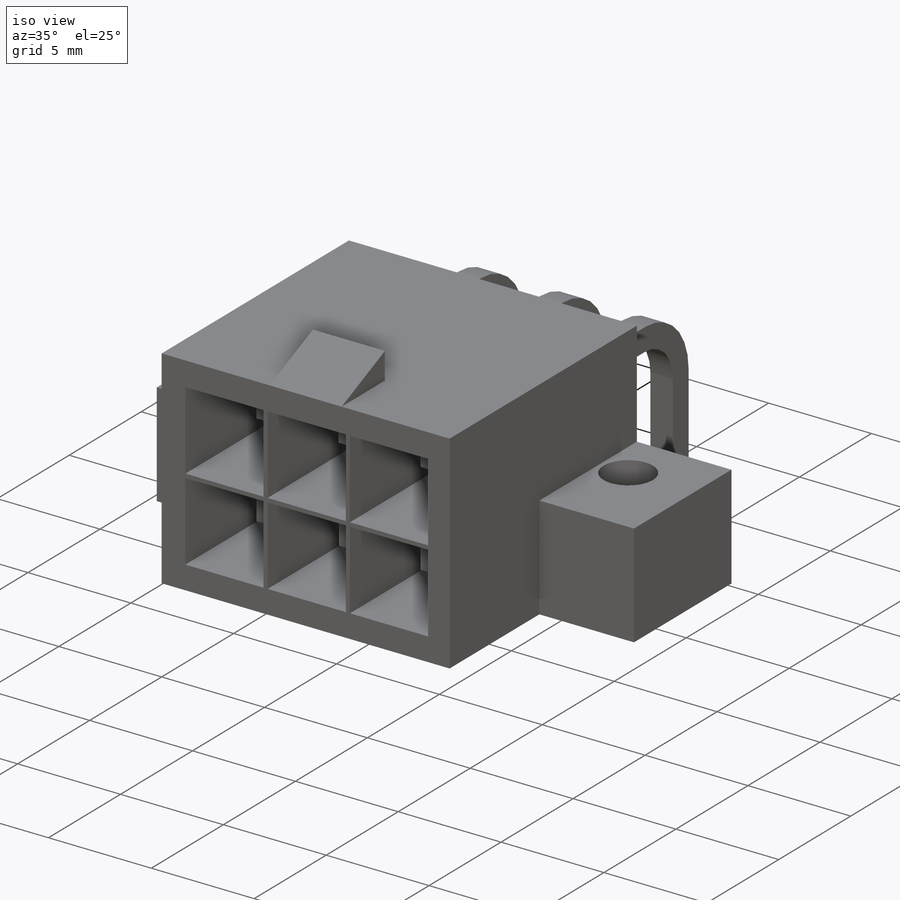
[diagram: iso view]
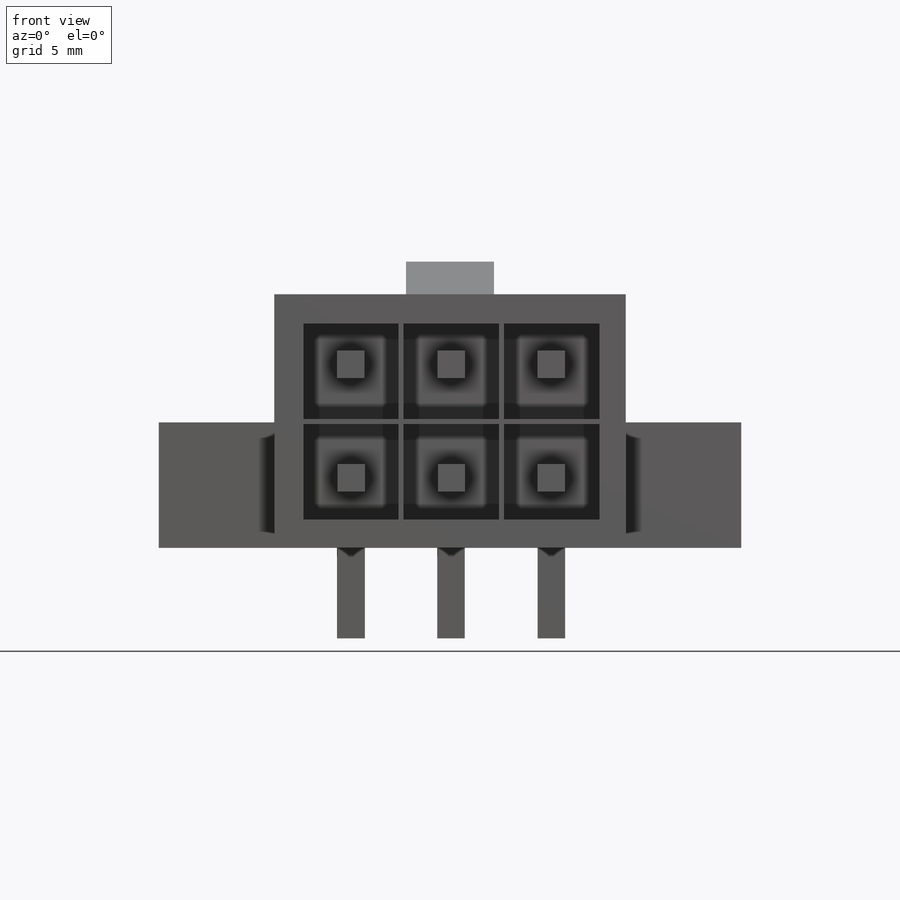
[diagram: front view]
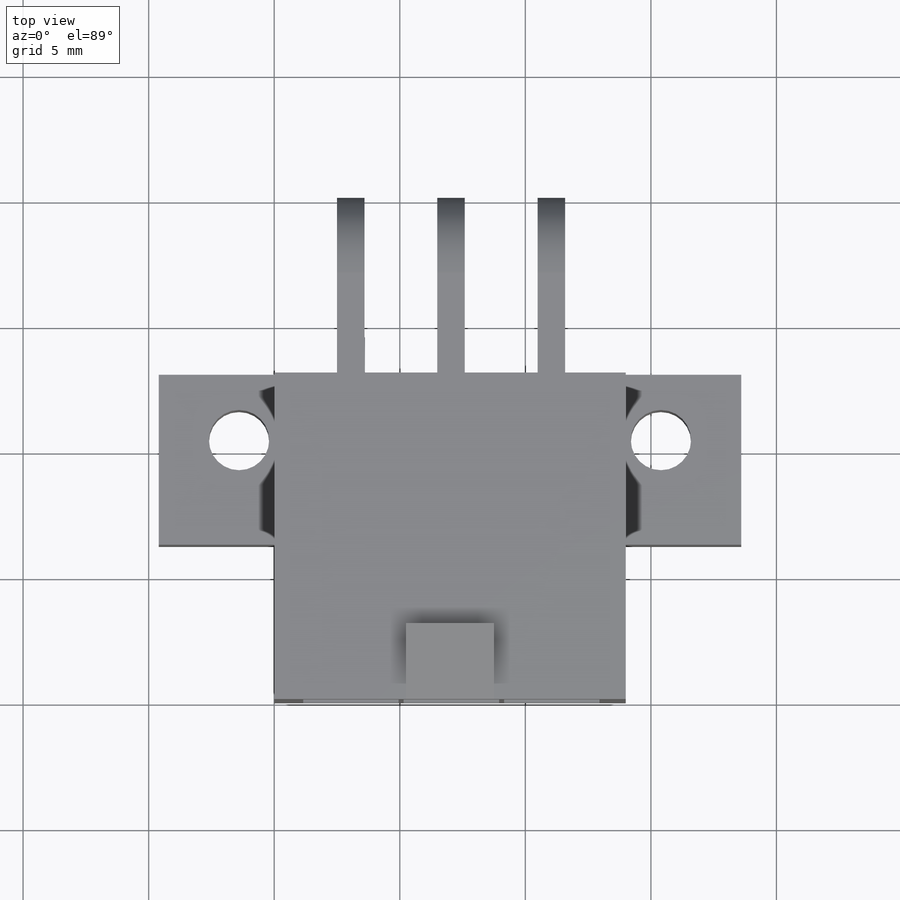
[diagram: top view]
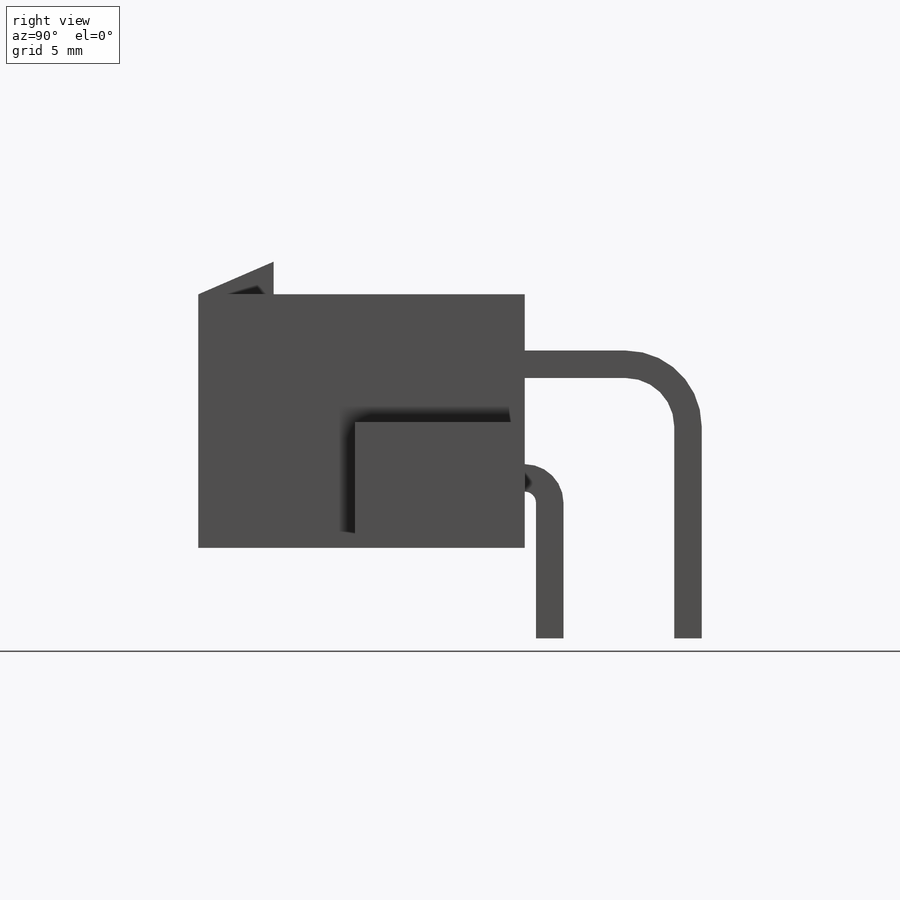
[diagram: right view]
SOLIDWORKS PART (.sldprt)
format: sldprt  version: not decoded by parser v0  size: 414,208 bytes
history: native  units: mm
features: sketch x14, plane x7, extrude x6, cut_extrude x3, sweep x2, material x1 (+12 scaffold rows collapsed)
feature tree (45):
  scaffold x12  (default folders/planes/origin — collapsed)
  material  "Material <not specified>"
  sketch  "Sketch1"  dims[D1=14.0mm]
  extrude  "Boss-Extrude1"  Depth=10.1mm
  sketch  "Sketch2"  dims[D1=3.5mm]
  extrude  "Boss-Extrude2"  Depth=1.3mm
  sketch  "Sketch3"
  cut_extrude  "Cut-Extrude1"  [1 undecoded]
  sketch  "Sketch4"
  extrude  "Boss-Extrude3"  Depth=4.6mm
  sketch  "Sketch5"
  extrude  "Boss-Extrude4"  Depth=4.6mm
  sketch  "Sketch6"  dims[c1.D1=~6.994012mm c1.D2=~12.114911mm c2.D1=3.8mm c2.D2=3.8mm c3.D1=3.8mm c3.D2=3.8mm c4.D1=3.8mm c4.D2=3.8mm c5.D1=3.8mm c5.D2=3.8mm c6.D1=3.8mm c6.D2=3.8mm c7.D1=3.8mm c7.D2=3.8mm]
  cut_extrude  "Cut-Extrude2"  Depth=9.2mm
  sketch  "Sketch7"  dims[c1.D1=~0.96004mm c1.D2=~1.417202mm c2.D1=~0.96004mm c2.D2=~2.602421mm c3.D1=~0.96004mm c3.D2=~2.731117mm c4.D1=2.9mm]
  plane  "Plane1"  Offset=4mm
  sketch  "Sketch9"  dims[D1=~4.989105mm]
  sketch  "Sketch8"  dims[D1=3.6mm]
  extrude  "Boss-Extrude5"  Depth=10mm
  sweep  "Sweep2"
  sketch  "Sketch7<4>"
  sketch  "Sketch10"  dims[c1.D1=~0.474577mm c1.D2=~0.58527mm c2.D1=~0.993583mm c2.D2=~0.587638mm c3.D1=1.09mm c3.D2=~0.894004mm c4.D1=1.09mm c4.D2=~0.894004mm c5.D1=1.09mm c5.D2=~0.894004mm c6.D1=1.09mm]
  sketch  "Sketch11"  dims[c1.D1=~3.104617mm c2.D1=45.0deg c3.D1=3.6mm c4.D1=~100.768303deg]
  sweep  "Sweep3"
  extrude  "Boss-Extrude6"  [1 undecoded]
  sketch  "Sketch10<2>"  dims[D1=10.0mm]
  sketch  "Sketch12"  dims[D1=3.2mm]
  cut_extrude  "Cut-Extrude3"  [1 undecoded]
  plane  "Plane2"
  plane  "Plane3"
  plane  "horizontal-plane-of-center-of-mate"  Offset=5.3mm
  plane  "Plane5"
  plane  "Plane6"
  plane  "vertical-plane-of-center-of-mate"
decode coverage: 16 of 25 modeling features carry decoded parameters
note: ~ marks probable driven/reference dimensions
note: 3 parameter values undecoded
summary: no parameter record found for 3 features
note: suppression state not decoded; provenance and decode notes live in map.json
